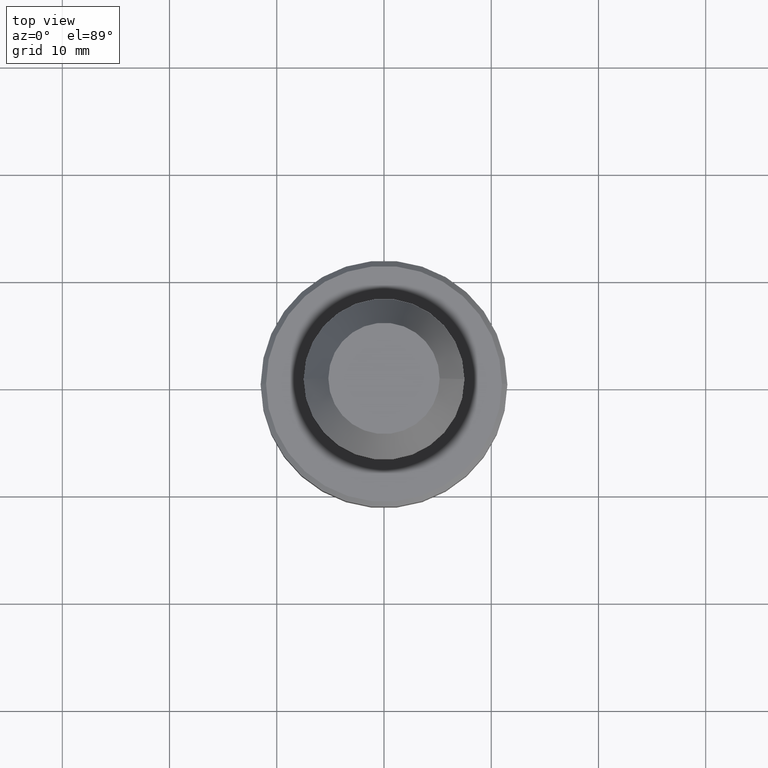
[diagram: clean part render]
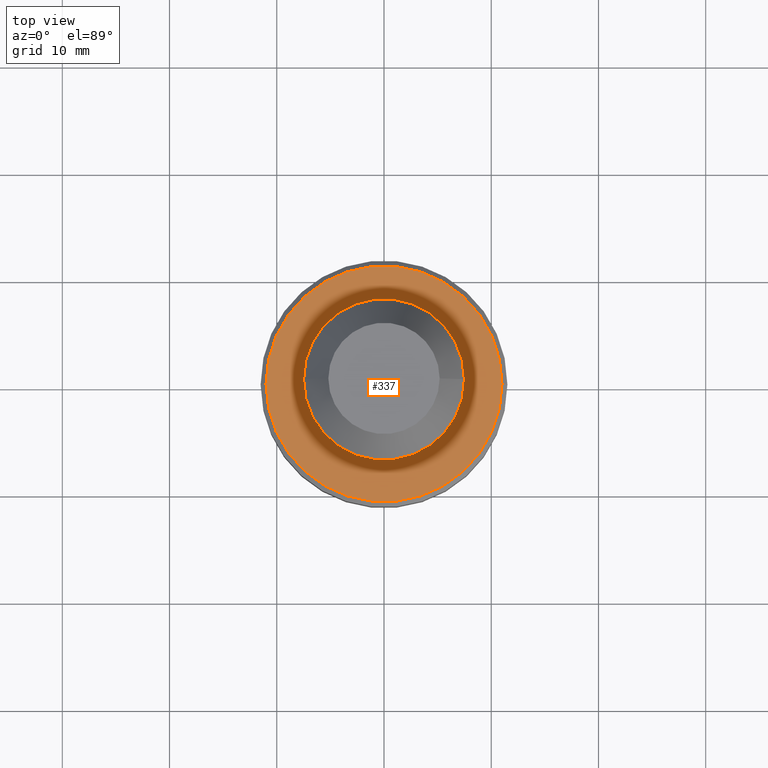
[diagram: same view with one face highlighted and labeled with its STEP entity id]
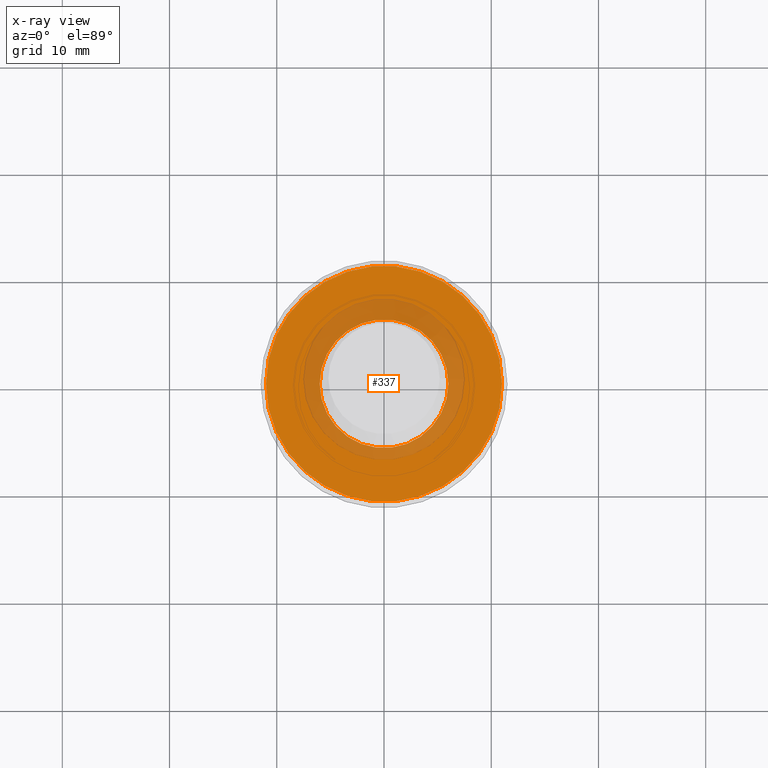
[diagram: x-ray of the same camera — body ghosted, the highlighted face saturated]
A machine part, top view. The second image highlights one B-rep face of the part: STEP entity #337.
The next image is the same camera in x-ray: the body ghosted, the highlighted face saturated — about 24% of this face is hidden behind the body in this view.
In plain terms, the highlighted planar face has unit normal (0, 0, -1).
Its self-contained STEP definition (entity closure, byte-faithful):
#16 = DIRECTION ( 'NONE',  ( 1.000000000000000000, 0.0000000000000000000, 0.0000000000000000000 ) ) ;
#23 = FACE_OUTER_BOUND ( 'NONE', #1029, .T. ) ;
#26 = ORIENTED_EDGE ( 'NONE', *, *, #848, .T. ) ;
#33 = CARTESIAN_POINT ( 'NONE',  ( 0.0000000000000000000, 0.0000000000000000000, -29.00000000000000400 ) ) ;
#54 = CIRCLE ( 'NONE', #204, 11.00000000000000000 ) ;
#62 = AXIS2_PLACEMENT_3D ( 'NONE', #233, #762, #137 ) ;
#107 = DIRECTION ( 'NONE',  ( 1.000000000000000000, 0.0000000000000000000, 0.0000000000000000000 ) ) ;
#108 = ORIENTED_EDGE ( 'NONE', *, *, #826, .F. ) ;
#121 = CARTESIAN_POINT ( 'NONE',  ( 6.000000000000000000, 0.0000000000000000000, -29.00000000000000400 ) ) ;
#123 = EDGE_CURVE ( 'NONE', #864, #717, #577, .T. ) ;
#137 = DIRECTION ( 'NONE',  ( 1.000000000000000000, 0.0000000000000000000, 0.0000000000000000000 ) ) ;
#143 = DIRECTION ( 'NONE',  ( -1.000000000000000000, 0.0000000000000000000, -0.0000000000000000000 ) ) ;
#151 = DIRECTION ( 'NONE',  ( 0.0000000000000000000, 0.0000000000000000000, -1.000000000000000000 ) ) ;
#204 = AXIS2_PLACEMENT_3D ( 'NONE', #958, #604, #16 ) ;
#209 = ORIENTED_EDGE ( 'NONE', *, *, #123, .F. ) ;
#231 = CARTESIAN_POINT ( 'NONE',  ( -11.00000000000000000, 0.0000000000000000000, -29.00000000000000400 ) ) ;
#233 = CARTESIAN_POINT ( 'NONE',  ( 0.0000000000000000000, 0.0000000000000000000, -29.00000000000000400 ) ) ;
#240 = CARTESIAN_POINT ( 'NONE',  ( -6.000000000000000000, 7.347880794884119700E-016, -29.00000000000000400 ) ) ;
#257 = CARTESIAN_POINT ( 'NONE',  ( 11.00000000000000000, 1.377727649040772400E-015, -29.00000000000000400 ) ) ;
#337 = ADVANCED_FACE ( 'NONE', ( #460, #23 ), #752, .F. ) ;
#365 = CIRCLE ( 'NONE', #62, 11.00000000000000000 ) ;
#414 = CARTESIAN_POINT ( 'NONE',  ( 0.0000000000000000000, 0.0000000000000000000, -29.00000000000000400 ) ) ;
#460 = FACE_BOUND ( 'NONE', #508, .T. ) ;
#497 = DIRECTION ( 'NONE',  ( 1.000000000000000000, 0.0000000000000000000, 0.0000000000000000000 ) ) ;
#508 = EDGE_LOOP ( 'NONE', ( #108, #209 ) ) ;
#577 = CIRCLE ( 'NONE', #787, 6.000000000000000000 ) ;
#604 = DIRECTION ( 'NONE',  ( -0.0000000000000000000, -0.0000000000000000000, 1.000000000000000000 ) ) ;
#605 = VERTEX_POINT ( 'NONE', #257 ) ;
#630 = DIRECTION ( 'NONE',  ( -0.0000000000000000000, -0.0000000000000000000, 1.000000000000000000 ) ) ;
#678 = EDGE_CURVE ( 'NONE', #903, #605, #54, .T. ) ;
#717 = VERTEX_POINT ( 'NONE', #121 ) ;
#752 = PLANE ( 'NONE',  #1001 ) ;
#762 = DIRECTION ( 'NONE',  ( -0.0000000000000000000, -0.0000000000000000000, 1.000000000000000000 ) ) ;
#787 = AXIS2_PLACEMENT_3D ( 'NONE', #33, #630, #107 ) ;
#826 = EDGE_CURVE ( 'NONE', #717, #864, #1069, .T. ) ;
#848 = EDGE_CURVE ( 'NONE', #605, #903, #365, .T. ) ;
#849 = CARTESIAN_POINT ( 'NONE',  ( 0.0000000000000000000, 6.000000000000000000, -29.00000000000000400 ) ) ;
#864 = VERTEX_POINT ( 'NONE', #240 ) ;
#903 = VERTEX_POINT ( 'NONE', #231 ) ;
#958 = CARTESIAN_POINT ( 'NONE',  ( 0.0000000000000000000, 0.0000000000000000000, -29.00000000000000400 ) ) ;
#965 = ORIENTED_EDGE ( 'NONE', *, *, #678, .T. ) ;
#1001 = AXIS2_PLACEMENT_3D ( 'NONE', #849, #151, #143 ) ;
#1017 = DIRECTION ( 'NONE',  ( -0.0000000000000000000, -0.0000000000000000000, 1.000000000000000000 ) ) ;
#1029 = EDGE_LOOP ( 'NONE', ( #965, #26 ) ) ;
#1069 = CIRCLE ( 'NONE', #1071, 6.000000000000000000 ) ;
#1071 = AXIS2_PLACEMENT_3D ( 'NONE', #414, #1017, #497 ) ;